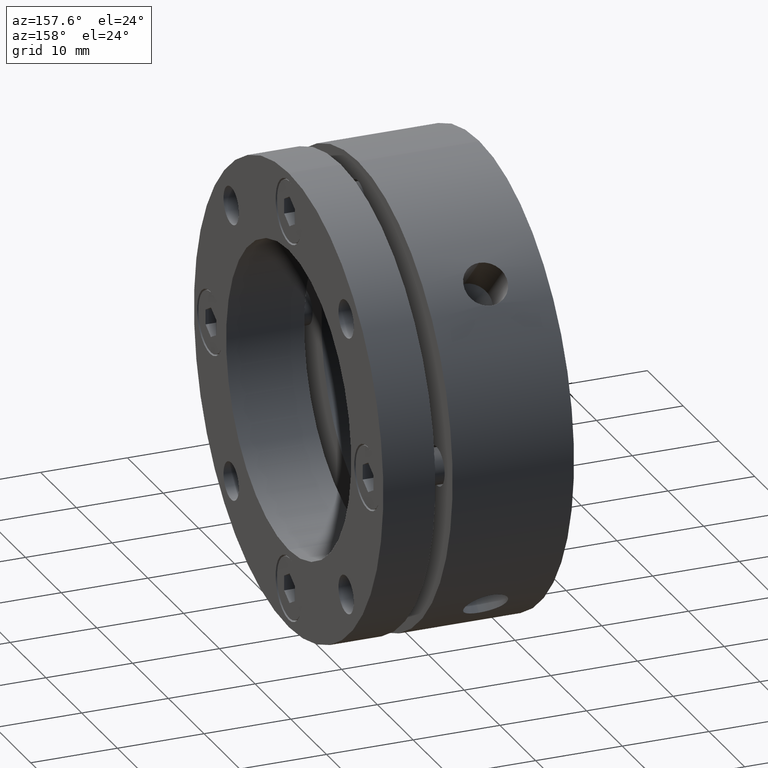
[diagram: clean part render]
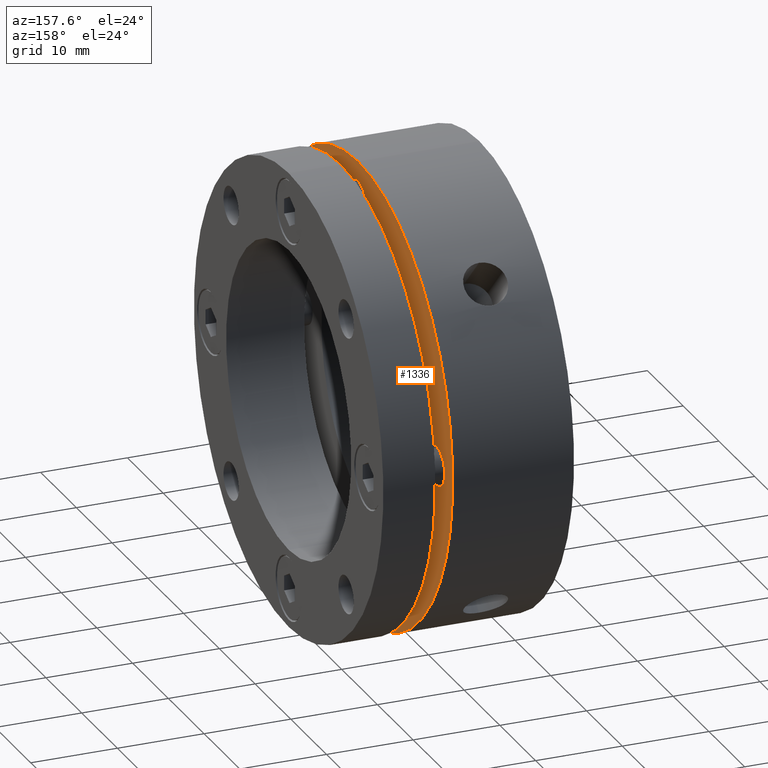
[diagram: same view with one face highlighted and labeled with its STEP entity id]
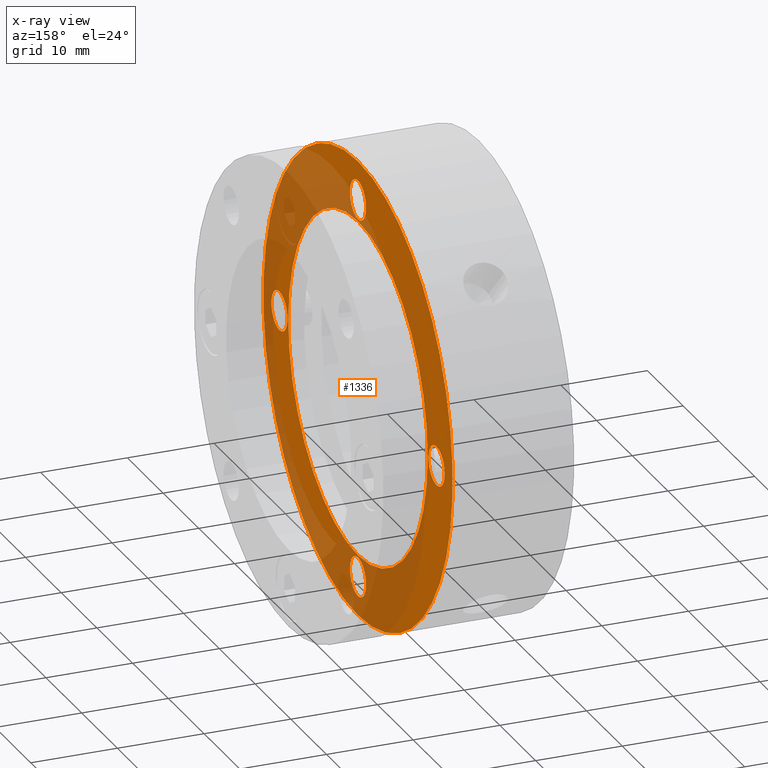
[diagram: x-ray of the same camera — body ghosted, the highlighted face saturated]
A machine part, auxiliary view. The second image highlights one B-rep face of the part: STEP entity #1336.
The next image is the same camera in x-ray: the body ghosted, the highlighted face saturated — about 45% of this face is hidden behind the body in this view.
In plain terms, the highlighted planar face has unit normal (-1, 0, 0).
Its self-contained STEP definition (entity closure, byte-faithful):
#18 = CARTESIAN_POINT ( 'NONE',  ( 14.00000000000000000, 22.00000000000001400, -4.041333999999999800E-015 ) ) ;
#19 = DIRECTION ( 'NONE',  ( 1.000000000000000000, 0.0000000000000000000, 0.0000000000000000000 ) ) ;
#20 = DIRECTION ( 'NONE',  ( 0.0000000000000000000, 0.0000000000000000000, -1.000000000000000000 ) ) ;
#21 = CARTESIAN_POINT ( 'NONE',  ( 14.00000000000000000, -2.694223000000000100E-015, -22.00000000000001400 ) ) ;
#22 = DIRECTION ( 'NONE',  ( 1.000000000000000000, 0.0000000000000000000, 0.0000000000000000000 ) ) ;
#23 = DIRECTION ( 'NONE',  ( 0.0000000000000000000, 0.0000000000000000000, -1.000000000000000000 ) ) ;
#24 = CARTESIAN_POINT ( 'NONE',  ( 14.00000000000000000, -22.00000000000001400, 1.347110999999999900E-015 ) ) ;
#25 = DIRECTION ( 'NONE',  ( 1.000000000000000000, 0.0000000000000000000, 0.0000000000000000000 ) ) ;
#26 = DIRECTION ( 'NONE',  ( 0.0000000000000000000, 0.0000000000000000000, -1.000000000000000000 ) ) ;
#27 = CARTESIAN_POINT ( 'NONE',  ( 14.00000000000000000, 0.0000000000000000000, 22.00000000000001400 ) ) ;
#28 = DIRECTION ( 'NONE',  ( 1.000000000000000000, 0.0000000000000000000, 0.0000000000000000000 ) ) ;
#29 = DIRECTION ( 'NONE',  ( 0.0000000000000000000, 0.0000000000000000000, -1.000000000000000000 ) ) ;
#30 = CARTESIAN_POINT ( 'NONE',  ( 14.00000000000000000, 0.0000000000000000000, 0.0000000000000000000 ) ) ;
#31 = DIRECTION ( 'NONE',  ( 1.000000000000000000, -0.0000000000000000000, -0.0000000000000000000 ) ) ;
#32 = DIRECTION ( 'NONE',  ( 0.0000000000000000000, 0.0000000000000000000, 1.000000000000000000 ) ) ;
#64 = CARTESIAN_POINT ( 'NONE',  ( 14.00000000000000000, 0.0000000000000000000, 0.0000000000000000000 ) ) ;
#65 = DIRECTION ( 'NONE',  ( -1.000000000000000000, -0.0000000000000000000, -0.0000000000000000000 ) ) ;
#66 = DIRECTION ( 'NONE',  ( 0.0000000000000000000, 0.0000000000000000000, -1.000000000000000000 ) ) ;
#144 = EDGE_LOOP ( 'NONE', ( #3269, #3270 ) ) ;
#151 = CARTESIAN_POINT ( 'NONE',  ( 14.00000000000000000, 0.0000000000000000000, 0.0000000000000000000 ) ) ;
#152 = DIRECTION ( 'NONE',  ( -1.000000000000000000, -0.0000000000000000000, -0.0000000000000000000 ) ) ;
#153 = DIRECTION ( 'NONE',  ( 0.0000000000000000000, 0.0000000000000000000, -1.000000000000000000 ) ) ;
#161 = EDGE_LOOP ( 'NONE', ( #3267, #3268 ) ) ;
#332 = EDGE_LOOP ( 'NONE', ( #3263, #3264 ) ) ;
#502 = CARTESIAN_POINT ( 'NONE',  ( 14.00000000000000000, 0.0000000000000000000, 0.0000000000000000000 ) ) ;
#503 = DIRECTION ( 'NONE',  ( 1.000000000000000000, -0.0000000000000000000, -0.0000000000000000000 ) ) ;
#504 = DIRECTION ( 'NONE',  ( 0.0000000000000000000, 0.0000000000000000000, 1.000000000000000000 ) ) ;
#512 = CARTESIAN_POINT ( 'NONE',  ( 14.00000000000000000, 0.0000000000000000000, 22.00000000000001400 ) ) ;
#513 = DIRECTION ( 'NONE',  ( 1.000000000000000000, 0.0000000000000000000, 0.0000000000000000000 ) ) ;
#514 = DIRECTION ( 'NONE',  ( 0.0000000000000000000, 0.0000000000000000000, -1.000000000000000000 ) ) ;
#522 = CARTESIAN_POINT ( 'NONE',  ( 14.00000000000000000, -22.00000000000001400, 1.347110999999999900E-015 ) ) ;
#523 = DIRECTION ( 'NONE',  ( 1.000000000000000000, 0.0000000000000000000, 0.0000000000000000000 ) ) ;
#524 = DIRECTION ( 'NONE',  ( 0.0000000000000000000, 0.0000000000000000000, -1.000000000000000000 ) ) ;
#532 = CARTESIAN_POINT ( 'NONE',  ( 14.00000000000000000, -2.694223000000000100E-015, -22.00000000000001400 ) ) ;
#533 = DIRECTION ( 'NONE',  ( 1.000000000000000000, 0.0000000000000000000, 0.0000000000000000000 ) ) ;
#534 = DIRECTION ( 'NONE',  ( 0.0000000000000000000, 0.0000000000000000000, -1.000000000000000000 ) ) ;
#542 = CARTESIAN_POINT ( 'NONE',  ( 14.00000000000000000, 22.00000000000001400, -4.041333999999999800E-015 ) ) ;
#543 = DIRECTION ( 'NONE',  ( 1.000000000000000000, 0.0000000000000000000, 0.0000000000000000000 ) ) ;
#544 = DIRECTION ( 'NONE',  ( 0.0000000000000000000, 0.0000000000000000000, -1.000000000000000000 ) ) ;
#825 = EDGE_CURVE ( 'NONE', #2952, #2898, #1042, .T. ) ;
#826 = EDGE_CURVE ( 'NONE', #2984, #2907, #1047, .T. ) ;
#827 = EDGE_CURVE ( 'NONE', #2937, #2923, #1051, .T. ) ;
#828 = EDGE_CURVE ( 'NONE', #2931, #2917, #1053, .T. ) ;
#829 = EDGE_CURVE ( 'NONE', #2903, #2915, #1055, .T. ) ;
#839 = EDGE_CURVE ( 'NONE', #2884, #2913, #1068, .T. ) ;
#846 = EDGE_CURVE ( 'NONE', #2913, #2884, #1075, .T. ) ;
#909 = EDGE_CURVE ( 'NONE', #2915, #2903, #1173, .T. ) ;
#913 = EDGE_CURVE ( 'NONE', #2917, #2931, #1178, .T. ) ;
#917 = EDGE_CURVE ( 'NONE', #2923, #2937, #1184, .T. ) ;
#921 = EDGE_CURVE ( 'NONE', #2907, #2984, #1190, .T. ) ;
#925 = EDGE_CURVE ( 'NONE', #2898, #2952, #1196, .T. ) ;
#1042 = CIRCLE ( 'NONE', #3531, 2.250000000000000400 ) ;
#1047 = CIRCLE ( 'NONE', #3532, 2.250000000000001800 ) ;
#1051 = CIRCLE ( 'NONE', #3533, 2.250000000000000400 ) ;
#1053 = CIRCLE ( 'NONE', #3534, 2.250000000000001800 ) ;
#1055 = CIRCLE ( 'NONE', #3535, 19.50000000000000000 ) ;
#1068 = CIRCLE ( 'NONE', #3016, 26.50000000000000400 ) ;
#1075 = CIRCLE ( 'NONE', #3020, 26.50000000000000400 ) ;
#1173 = CIRCLE ( 'NONE', #3036, 19.50000000000000000 ) ;
#1178 = CIRCLE ( 'NONE', #3038, 2.250000000000001800 ) ;
#1184 = CIRCLE ( 'NONE', #3040, 2.250000000000000400 ) ;
#1190 = CIRCLE ( 'NONE', #3042, 2.250000000000001800 ) ;
#1196 = CIRCLE ( 'NONE', #3044, 2.250000000000000400 ) ;
#1336 = ADVANCED_FACE ( 'NONE', ( #1631, #1639, #1635, #1633, #1637, #1640 ), #1978, .F. ) ;
#1346 = EDGE_LOOP ( 'NONE', ( #3261, #3262 ) ) ;
#1360 = EDGE_LOOP ( 'NONE', ( #3259, #3260 ) ) ;
#1365 = EDGE_LOOP ( 'NONE', ( #3265, #3266 ) ) ;
#1631 = FACE_BOUND ( 'NONE', #1360, .T. ) ;
#1633 = FACE_BOUND ( 'NONE', #1365, .T. ) ;
#1635 = FACE_BOUND ( 'NONE', #332, .T. ) ;
#1637 = FACE_BOUND ( 'NONE', #161, .T. ) ;
#1639 = FACE_BOUND ( 'NONE', #1346, .T. ) ;
#1640 = FACE_OUTER_BOUND ( 'NONE', #144, .T. ) ;
#1783 = AXIS2_PLACEMENT_3D ( 'NONE', #1980, #1976, #1982 ) ;
#1976 = DIRECTION ( 'NONE',  ( -1.000000000000000000, 0.0000000000000000000, 0.0000000000000000000 ) ) ;
#1978 = PLANE ( 'NONE',  #1783 ) ;
#1980 = CARTESIAN_POINT ( 'NONE',  ( 14.00000000000000000, 23.00000000000000400, 0.0000000000000000000 ) ) ;
#1982 = DIRECTION ( 'NONE',  ( 0.0000000000000000000, 0.0000000000000000000, 1.000000000000000000 ) ) ;
#2055 = CARTESIAN_POINT ( 'NONE',  ( 14.00000000000000000, 0.0000000000000000000, -26.50000000000000400 ) ) ;
#2066 = CARTESIAN_POINT ( 'NONE',  ( 14.00000000000000000, 22.00000000000001400, 2.249999999999996400 ) ) ;
#2071 = CARTESIAN_POINT ( 'NONE',  ( 14.00000000000000000, 0.0000000000000000000, 19.50000000000000000 ) ) ;
#2075 = CARTESIAN_POINT ( 'NONE',  ( 14.00000000000000000, -2.418677470191845600E-015, -19.75000000000001100 ) ) ;
#2081 = CARTESIAN_POINT ( 'NONE',  ( 14.00000000000000000, 3.245314017740486600E-015, 26.50000000000000400 ) ) ;
#2083 = CARTESIAN_POINT ( 'NONE',  ( 14.00000000000000000, 2.388061258337338900E-015, -19.50000000000000000 ) ) ;
#2085 = CARTESIAN_POINT ( 'NONE',  ( 14.00000000000000000, 2.755455298081542800E-016, 24.25000000000001400 ) ) ;
#2091 = CARTESIAN_POINT ( 'NONE',  ( 14.00000000000000000, -22.00000000000001400, 2.250000000000001800 ) ) ;
#2099 = CARTESIAN_POINT ( 'NONE',  ( 14.00000000000000000, 0.0000000000000000000, 19.75000000000001100 ) ) ;
#2105 = CARTESIAN_POINT ( 'NONE',  ( 14.00000000000000000, -22.00000000000001400, -2.249999999999999100 ) ) ;
#2117 = CARTESIAN_POINT ( 'NONE',  ( 14.00000000000000000, 22.00000000000001400, -2.250000000000004000 ) ) ;
#2146 = CARTESIAN_POINT ( 'NONE',  ( 14.00000000000000000, -2.694223000000000100E-015, -24.25000000000001400 ) ) ;
#2884 = VERTEX_POINT ( 'NONE', #2055 ) ;
#2898 = VERTEX_POINT ( 'NONE', #2066 ) ;
#2903 = VERTEX_POINT ( 'NONE', #2071 ) ;
#2907 = VERTEX_POINT ( 'NONE', #2075 ) ;
#2913 = VERTEX_POINT ( 'NONE', #2081 ) ;
#2915 = VERTEX_POINT ( 'NONE', #2083 ) ;
#2917 = VERTEX_POINT ( 'NONE', #2085 ) ;
#2923 = VERTEX_POINT ( 'NONE', #2091 ) ;
#2931 = VERTEX_POINT ( 'NONE', #2099 ) ;
#2937 = VERTEX_POINT ( 'NONE', #2105 ) ;
#2952 = VERTEX_POINT ( 'NONE', #2117 ) ;
#2984 = VERTEX_POINT ( 'NONE', #2146 ) ;
#3016 = AXIS2_PLACEMENT_3D ( 'NONE', #64, #65, #66 ) ;
#3020 = AXIS2_PLACEMENT_3D ( 'NONE', #151, #152, #153 ) ;
#3036 = AXIS2_PLACEMENT_3D ( 'NONE', #502, #503, #504 ) ;
#3038 = AXIS2_PLACEMENT_3D ( 'NONE', #512, #513, #514 ) ;
#3040 = AXIS2_PLACEMENT_3D ( 'NONE', #522, #523, #524 ) ;
#3042 = AXIS2_PLACEMENT_3D ( 'NONE', #532, #533, #534 ) ;
#3044 = AXIS2_PLACEMENT_3D ( 'NONE', #542, #543, #544 ) ;
#3259 = ORIENTED_EDGE ( 'NONE', *, *, #829, .F. ) ;
#3260 = ORIENTED_EDGE ( 'NONE', *, *, #909, .F. ) ;
#3261 = ORIENTED_EDGE ( 'NONE', *, *, #828, .F. ) ;
#3262 = ORIENTED_EDGE ( 'NONE', *, *, #913, .F. ) ;
#3263 = ORIENTED_EDGE ( 'NONE', *, *, #827, .F. ) ;
#3264 = ORIENTED_EDGE ( 'NONE', *, *, #917, .F. ) ;
#3265 = ORIENTED_EDGE ( 'NONE', *, *, #826, .F. ) ;
#3266 = ORIENTED_EDGE ( 'NONE', *, *, #921, .F. ) ;
#3267 = ORIENTED_EDGE ( 'NONE', *, *, #825, .F. ) ;
#3268 = ORIENTED_EDGE ( 'NONE', *, *, #925, .F. ) ;
#3269 = ORIENTED_EDGE ( 'NONE', *, *, #839, .F. ) ;
#3270 = ORIENTED_EDGE ( 'NONE', *, *, #846, .F. ) ;
#3531 = AXIS2_PLACEMENT_3D ( 'NONE', #18, #19, #20 ) ;
#3532 = AXIS2_PLACEMENT_3D ( 'NONE', #21, #22, #23 ) ;
#3533 = AXIS2_PLACEMENT_3D ( 'NONE', #24, #25, #26 ) ;
#3534 = AXIS2_PLACEMENT_3D ( 'NONE', #27, #28, #29 ) ;
#3535 = AXIS2_PLACEMENT_3D ( 'NONE', #30, #31, #32 ) ;